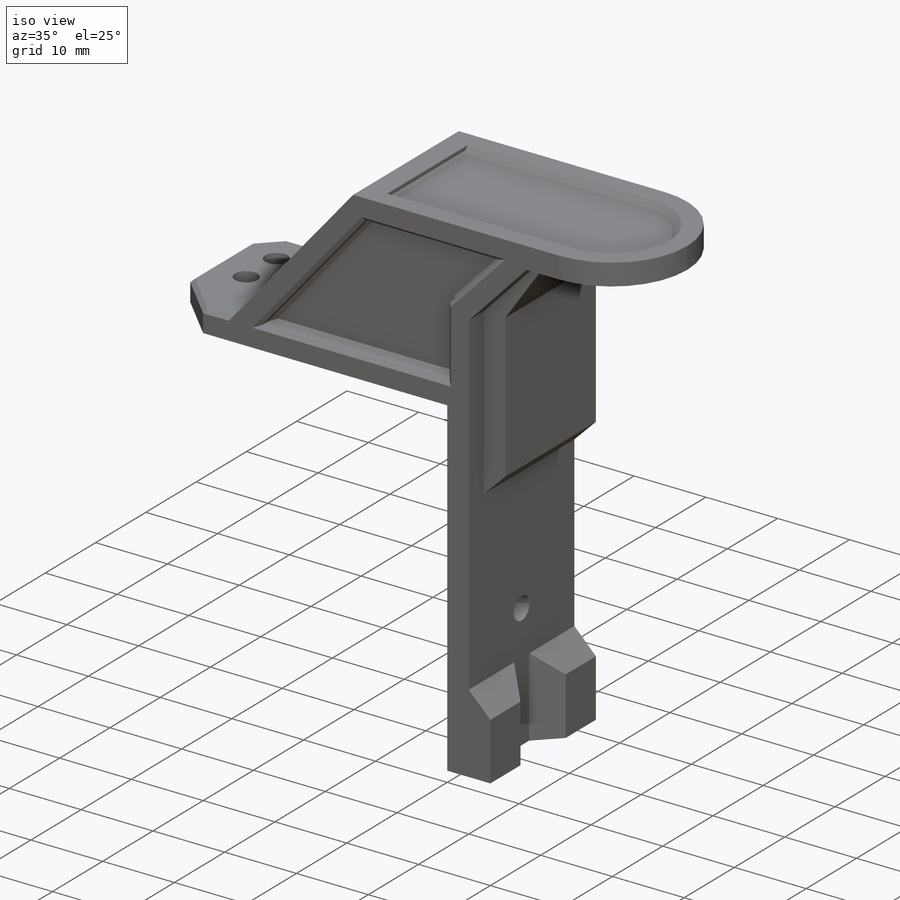
[diagram: iso view]
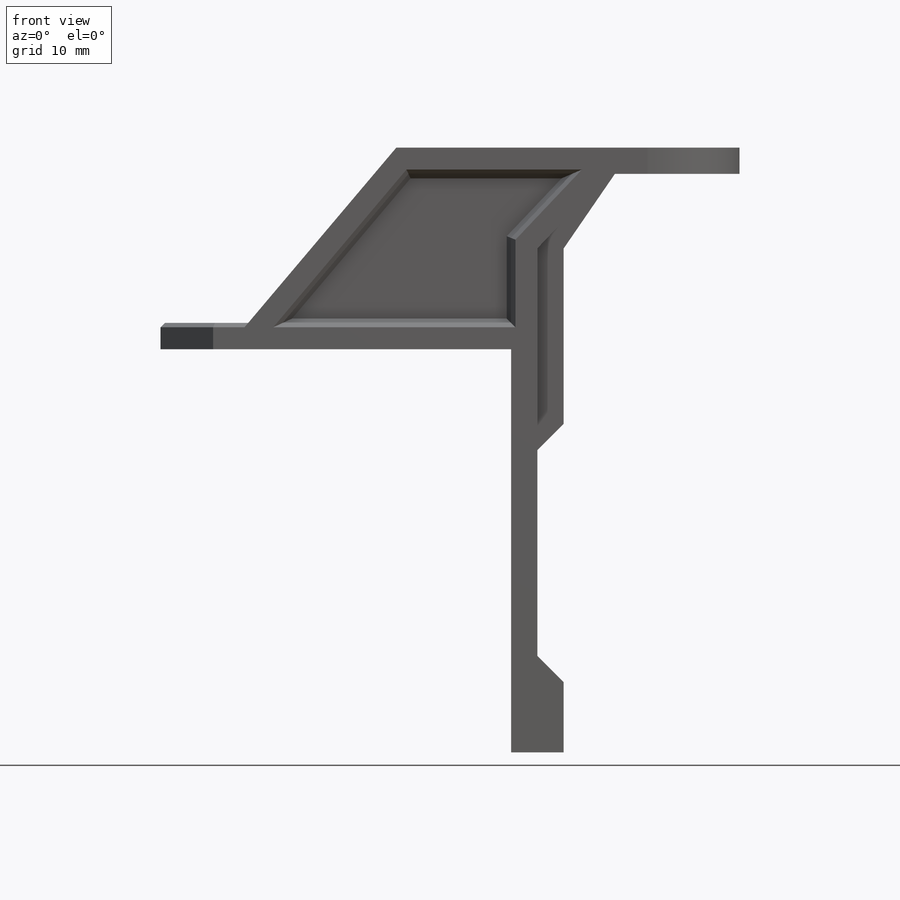
[diagram: front view]
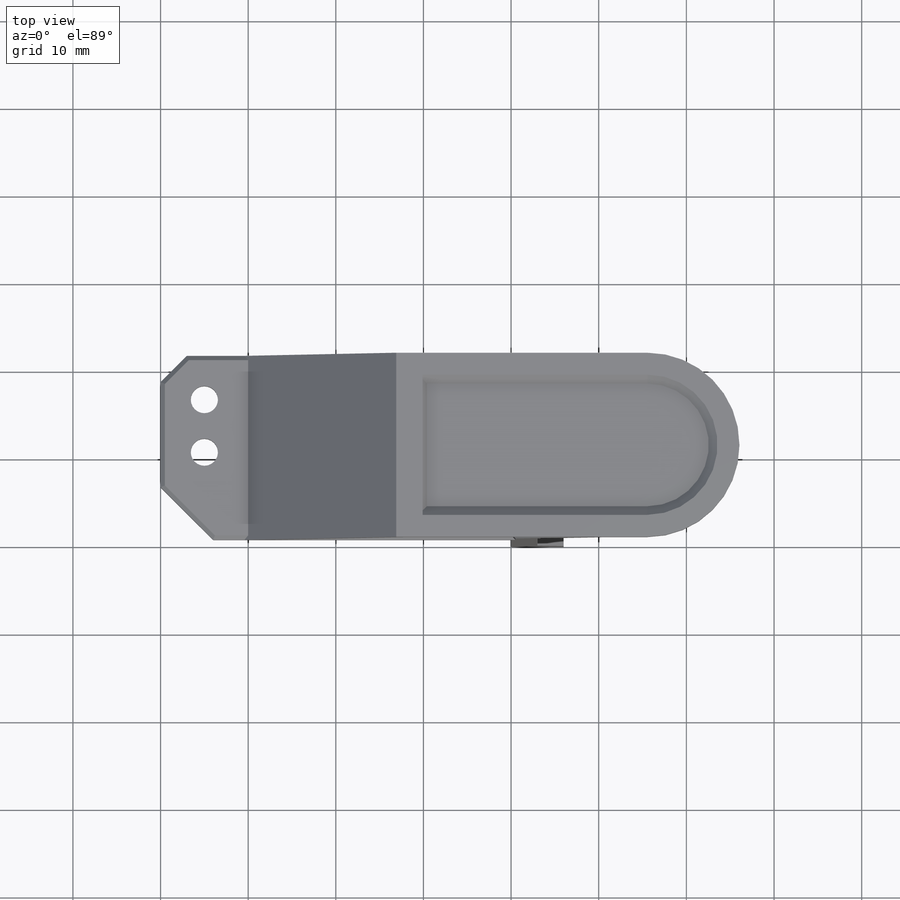
[diagram: top view]
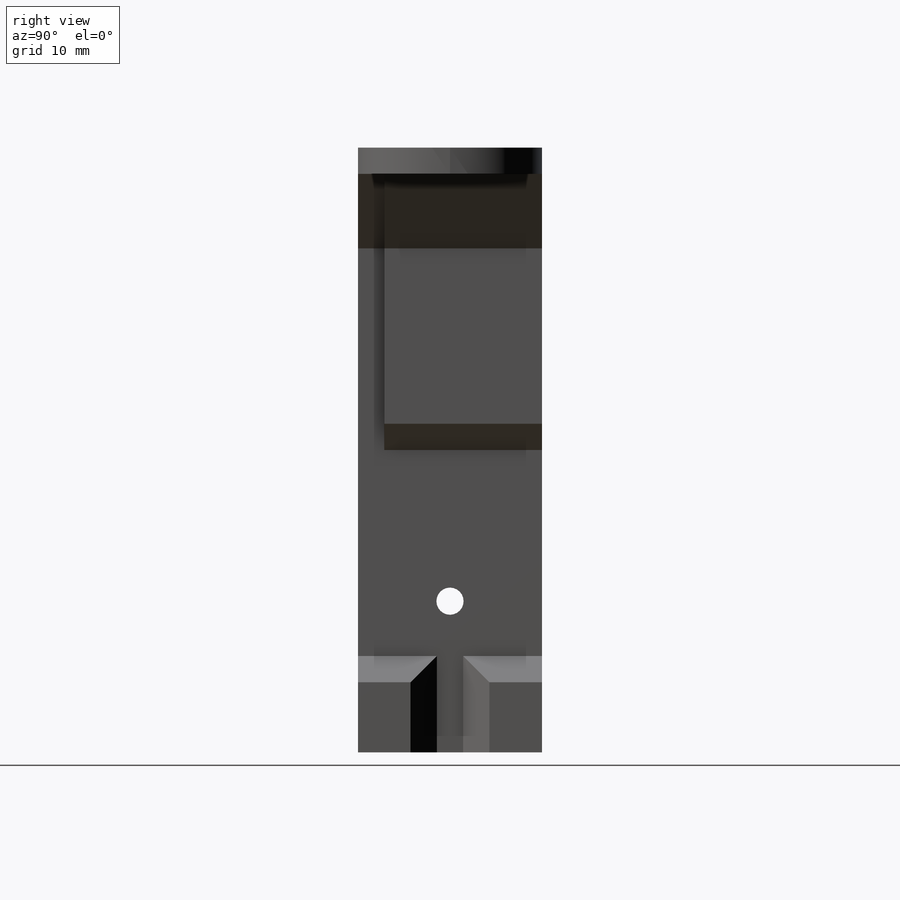
[diagram: right view]
SOLIDWORKS PART (.sldprt)
format: sldprt  version: not decoded by parser v0  size: 467,456 bytes
history: native  units: mm
features: sketch x13, chamfer x9, extrude x8, cut_extrude x5, material x1, fillet x1 (+13 scaffold rows collapsed)
feature tree (50):
  scaffold x13  (default folders/planes/origin — collapsed)
  material  "Material <not specified>"
  sketch  "Sketch1"  dims[c1.D1=~22.615698mm c1.D2=~27.051238mm c2.D1=46.0mm c2.D2=136.0mm c3.D1=46.0mm c3.D2=136.0mm c3.D3=46.0mm c3.D4=~8.821449mm c4.D3=15.0mm c4.D4=15.0mm c4.D5=5.0mm c4.D1=46.0mm c4.D2=21.0mm c5.D3=21.0mm]
  extrude  "Boss-Extrude1"  Depth=3mm
  sketch  "Sketch2"  dims[c1.D1=8.0mm c1.D2=8.0mm c2.D1=8.0mm c2.D2=8.0mm c2.D3=8.0mm c3.D2=8.0mm c3.D1=~6.550269mm c4.D2=~6.599112mm c4.D1=6.0mm c5.D2=8.0mm c5.D3=8.0mm c5.D4=~4.818009mm c6.D3=6.0mm]
  extrude  "Boss-Extrude2"  Depth=3mm
  chamfer  "Chamfer1"  Distance=3mm Angle=45deg
  sketch  "Sketch3"  dims[D1=30.0mm D2=23.0mm D3=16.9mm D4=3.0mm D5=27.0mm D6=3.0mm]
  extrude  "Boss-Extrude3"  [1 undecoded]
  chamfer  "Chamfer2"  Distance=3mm Angle=45deg
  sketch  "Sketch4"  dims[c1.D1=~17.739244mm c1.D2=~13.693776mm c2.D1=3.0mm c2.D2=3.0mm c2.D3=20.0mm]
  extrude  "Boss-Extrude4"  Depth=3mm
  sketch  "Sketch5"  dims[c1.D1=~26.665307mm c1.D2=3.0mm c2.D1=0.0mm]
  extrude  "Boss-Extrude5"  [1 undecoded]
  chamfer  "Chamfer4"  Distance=3mm Angle=45deg
  sketch  "Sketch7"  dims[D1=~24.17277mm]
  cut_extrude  "Cut-Extrude1"  [1 undecoded]
  sketch  "Sketch9"  dims[D1=0.0mm]
  extrude  "Boss-Extrude6"  Depth=10mm
  sketch  "Sketch10"  dims[c1.D1=3.1mm c1.D2=3.1mm c1.D3=3.1mm c2.D1=~27.934033mm c2.D3=6.0mm c2.D4=10.0mm]
  cut_extrude  "Cut-Extrude2"  [1 undecoded]
  chamfer  "Chamfer5"  Distance=3mm Angle=45deg
  chamfer  "Chamfer7"  Distance=6mm Angle=45deg
  chamfer  "Chamfer6"  Distance=0.5mm Angle=45deg
  sketch  "Sketch12"  dims[c1.D1=~3.322344mm c1.D2=~5.746605mm c2.D1=3.0mm c2.D2=~2.843478mm]
  cut_extrude  "Cut-Extrude4"  [1 undecoded]
  sketch  "Sketch13"  dims[D1=0.0mm]
  extrude  "Boss-Extrude7"  Depth=15mm
  fillet  "Fillet1"  Radius=10.5mm
  sketch  "Sketch14"  dims[D1=3.0mm]
  cut_extrude  "Cut-Extrude5"  Depth=2mm
  chamfer  "Chamfer9"  Distance=0.5mm Angle=45deg
  sketch  "Sketch15"  dims[D1=0.0mm D2=3.0mm]
  cut_extrude  "Cut-Extrude6"  Depth=1mm
  chamfer  "Chamfer10"  Distance=0.5mm Angle=45deg
  chamfer  "Chamfer11"  Distance=0.5mm Angle=45deg
  sketch  "Sketch16"  dims[D1=0.0mm]
  extrude  "Boss-Extrude8"  [1 undecoded]
decode coverage: 30 of 36 modeling features carry decoded parameters
note: ~ marks probable driven/reference dimensions
note: 6 parameter values undecoded
summary: no parameter record found for 6 features
note: suppression state not decoded; provenance and decode notes live in map.json
